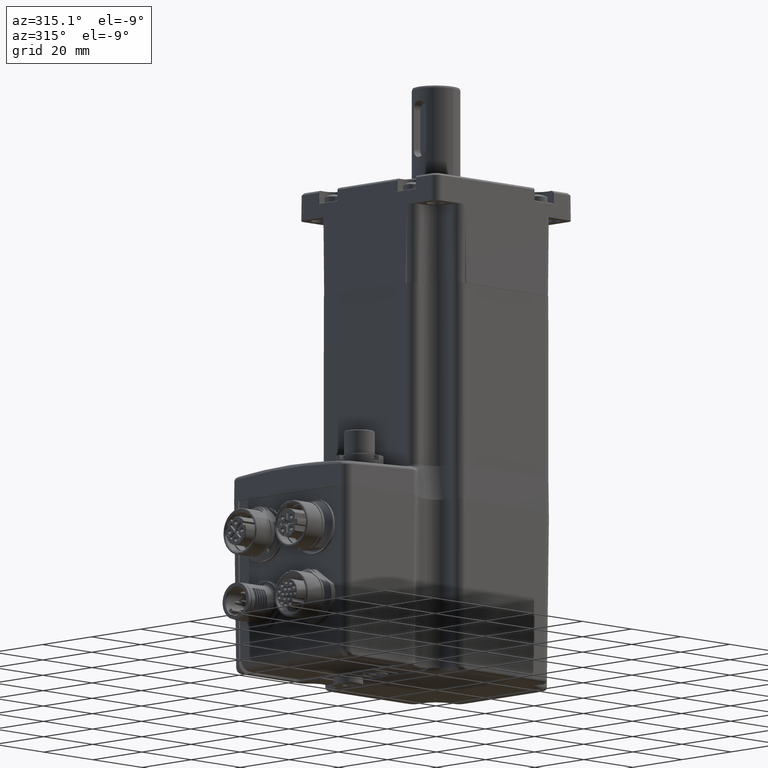
[diagram: clean part render]
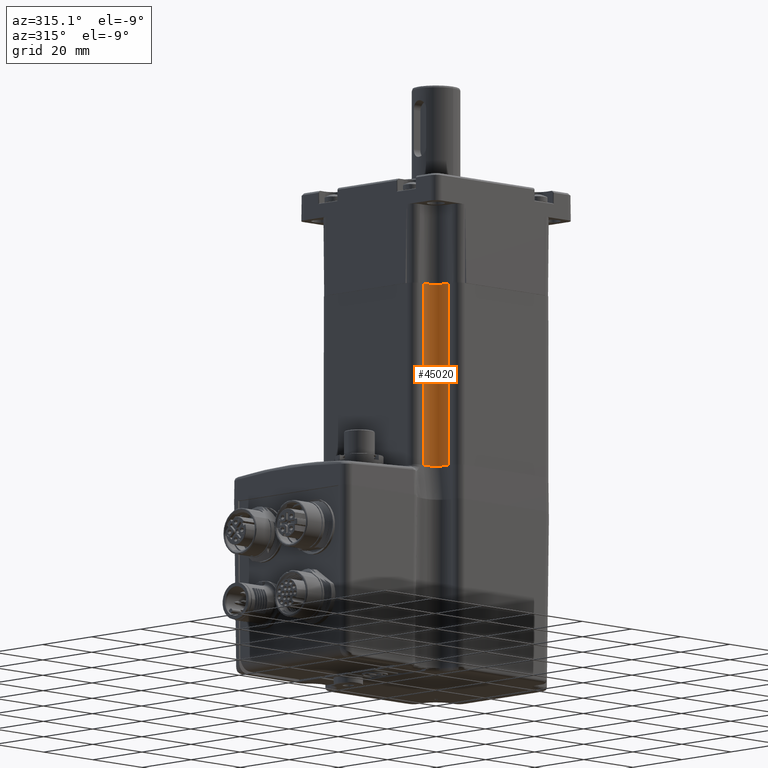
[diagram: same view with one face highlighted and labeled with its STEP entity id]
A machine part, auxiliary view. The second image highlights one B-rep face of the part: STEP entity #45020.
In plain terms, the highlighted cylindrical surface (edge-blend (fillet) strip) has radius 5 mm, axis along (-0, -0, -1).
Its self-contained STEP definition (entity closure, byte-faithful):
#1067 = CARTESIAN_POINT ( 'NONE',  ( -19.13013661665843657, -22.69126057820360387, -43.00000000000002842 ) ) ;
#4539 = ORIENTED_EDGE ( 'NONE', *, *, #46717, .F. ) ;
#8605 = ORIENTED_EDGE ( 'NONE', *, *, #33472, .F. ) ;
#9558 = B_SPLINE_CURVE_WITH_KNOTS ( 'NONE', 3,
 ( #73161, #111481, #58104, #39300, #86936, #48728, #115137, #1067, #11682, #59332 ),
 .UNSPECIFIED., .F., .F.,
 ( 4, 2, 2, 2, 4 ),
 ( 0.000000000000000000, 0.2500000000000000000, 0.5000000000000000000, 0.7500000000000000000, 1.000000000000000000 ),
 .UNSPECIFIED. ) ;
#11682 = CARTESIAN_POINT ( 'NONE',  ( -19.00000000000001776, -23.34550153050212629, -43.00000000000002132 ) ) ;
#18650 = CARTESIAN_POINT ( 'NONE',  ( -18.99964102040603819, -24.00000000000000000, 9.999999999999971578 ) ) ;
#19528 = CARTESIAN_POINT ( 'NONE',  ( -24.00000000000000711, -24.00000000000000000, 9.999999999999973355 ) ) ;
#19568 = VERTEX_POINT ( 'NONE', #102492 ) ;
#19661 = LINE ( 'NONE', #39699, #120778 ) ;
#20147 = FACE_OUTER_BOUND ( 'NONE', #77232, .T. ) ;
#21146 = EDGE_CURVE ( 'NONE', #19568, #72557, #19661, .T. ) ;
#22226 = CARTESIAN_POINT ( 'NONE',  ( -23.79920190844596206, -19.00190596703989598, 9.999999999999971578 ) ) ;
#22910 = B_SPLINE_CURVE_WITH_KNOTS ( 'NONE', 3,
 ( #79186, #108733, #41611, #22226 ),
 .UNSPECIFIED., .F., .F.,
 ( 4, 4 ),
 ( 0.8896583735169266705, 1.000000000000000000 ),
 .UNSPECIFIED. ) ;
#25415 = VECTOR ( 'NONE', #29261, 1000.000000000000000 ) ;
#27124 = DIRECTION ( 'NONE',  ( -1.000000000000000000, 0.000000000000000000, 0.000000000000000000 ) ) ;
#27643 = DIRECTION ( 'NONE',  ( -0.000000000000000000, -0.000000000000000000, -1.000000000000000000 ) ) ;
#29242 = VERTEX_POINT ( 'NONE', #62898 ) ;
#29261 = DIRECTION ( 'NONE',  ( -0.000000000000000000, -0.000000000000000000, -1.000000000000000000 ) ) ;
#33472 = EDGE_CURVE ( 'NONE', #94323, #111662, #76344, .T. ) ;
#35187 = EDGE_CURVE ( 'NONE', #111662, #93773, #105124, .T. ) ;
#38333 = CYLINDRICAL_SURFACE ( 'NONE', #110665, 4.999999999999993783 ) ;
#39066 = DIRECTION ( 'NONE',  ( -0.000000000000000000, -0.000000000000000000, -1.000000000000000000 ) ) ;
#39300 = CARTESIAN_POINT ( 'NONE',  ( -21.48190509814551064, -19.63106805822870982, -43.00000000000001421 ) ) ;
#39423 = AXIS2_PLACEMENT_3D ( 'NONE', #102892, #27643, #85196 ) ;
#39699 = CARTESIAN_POINT ( 'NONE',  ( -24.00000000000000711, -19.00000000000001066, 9.999999999999973355 ) ) ;
#41595 = CARTESIAN_POINT ( 'NONE',  ( -19.00190585406195254, -23.79920476146977748, 9.999999999999971578 ) ) ;
#41611 = CARTESIAN_POINT ( 'NONE',  ( -23.86606618101340871, -18.99928204081344418, 9.999999999999968026 ) ) ;
#45020 = ADVANCED_FACE ( 'NONE', ( #20147 ), #38333, .F. ) ;
#46717 = EDGE_CURVE ( 'NONE', #29242, #94323, #93501, .T. ) ;
#48626 = ORIENTED_EDGE ( 'NONE', *, *, #35187, .F. ) ;
#48728 = CARTESIAN_POINT ( 'NONE',  ( -20.00166578800911310, -20.92726640012543271, -43.00000000000001421 ) ) ;
#56240 = EDGE_CURVE ( 'NONE', #72557, #93773, #9558, .T. ) ;
#56643 = EDGE_CURVE ( 'NONE', #19568, #29242, #22910, .T. ) ;
#58104 = CARTESIAN_POINT ( 'NONE',  ( -22.69126057820360742, -19.13013661665842946, -43.00000000000002842 ) ) ;
#58968 = CARTESIAN_POINT ( 'NONE',  ( -19.00009088569424520, -24.00000074003705564, -43.00000083336040291 ) ) ;
#59332 = CARTESIAN_POINT ( 'NONE',  ( -19.00009088569424520, -24.00000074003705564, -43.00000083336040291 ) ) ;
#62152 = CARTESIAN_POINT ( 'NONE',  ( -19.00190585406195254, -23.79920476146977748, 9.999999999999971578 ) ) ;
#62898 = CARTESIAN_POINT ( 'NONE',  ( -23.79920190844596206, -19.00190596703989598, 9.999999999999971578 ) ) ;
#69814 = CARTESIAN_POINT ( 'NONE',  ( -18.99928204081207284, -23.93303309050714844, 9.999999999999964473 ) ) ;
#72557 = VERTEX_POINT ( 'NONE', #122815 ) ;
#73161 = CARTESIAN_POINT ( 'NONE',  ( -23.99705883283406749, -19.00000000000000711, -43.00000000000002132 ) ) ;
#76344 = B_SPLINE_CURVE_WITH_KNOTS ( 'NONE', 3,
 ( #41595, #115583, #69814, #79797 ),
 .UNSPECIFIED., .F., .F.,
 ( 4, 4 ),
 ( 0.000000000000000000, 0.1103416264823340320 ),
 .UNSPECIFIED. ) ;
#76528 = DIRECTION ( 'NONE',  ( -0.000000000000000000, -0.000000000000000000, -1.000000000000000000 ) ) ;
#77232 = EDGE_LOOP ( 'NONE', ( #115379, #48626, #8605, #4539, #82197, #96713 ) ) ;
#79186 = CARTESIAN_POINT ( 'NONE',  ( -24.00000000000000711, -18.99964102040673097, 9.999999999999971578 ) ) ;
#79797 = CARTESIAN_POINT ( 'NONE',  ( -18.99964102040603819, -24.00000000000000000, 9.999999999999971578 ) ) ;
#82197 = ORIENTED_EDGE ( 'NONE', *, *, #56643, .F. ) ;
#85196 = DIRECTION ( 'NONE',  ( -1.000000000000000000, 0.000000000000000000, 0.000000000000000000 ) ) ;
#86936 = CARTESIAN_POINT ( 'NONE',  ( -20.92726640012543626, -20.00166578800910244, -43.00000000000002132 ) ) ;
#93501 = CIRCLE ( 'NONE', #39423, 4.999999999999993783 ) ;
#93773 = VERTEX_POINT ( 'NONE', #58968 ) ;
#94323 = VERTEX_POINT ( 'NONE', #62152 ) ;
#96713 = ORIENTED_EDGE ( 'NONE', *, *, #21146, .T. ) ;
#102492 = CARTESIAN_POINT ( 'NONE',  ( -24.00000000000000711, -18.99964102040673097, 9.999999999999971578 ) ) ;
#102892 = CARTESIAN_POINT ( 'NONE',  ( -24.00000000000000711, -24.00000000000000000, 9.999999999999973355 ) ) ;
#105124 = LINE ( 'NONE', #123829, #25415 ) ;
#108733 = CARTESIAN_POINT ( 'NONE',  ( -23.93303309050670791, -18.99928204081344418, 9.999999999999968026 ) ) ;
#110665 = AXIS2_PLACEMENT_3D ( 'NONE', #19528, #76528, #27124 ) ;
#111481 = CARTESIAN_POINT ( 'NONE',  ( -23.34550153050212629, -19.00000000000000355, -43.00000000000002132 ) ) ;
#111662 = VERTEX_POINT ( 'NONE', #18650 ) ;
#115137 = CARTESIAN_POINT ( 'NONE',  ( -19.63106805822872403, -21.48190509814550708, -43.00000000000002132 ) ) ;
#115379 = ORIENTED_EDGE ( 'NONE', *, *, #56240, .T. ) ;
#115583 = CARTESIAN_POINT ( 'NONE',  ( -18.99928204081207284, -23.86606618101430044, 9.999999999999968026 ) ) ;
#120778 = VECTOR ( 'NONE', #39066, 1000.000000000000000 ) ;
#122815 = CARTESIAN_POINT ( 'NONE',  ( -23.99705883283406749, -19.00000000000000711, -43.00000000000002132 ) ) ;
#123829 = CARTESIAN_POINT ( 'NONE',  ( -19.00000000000001066, -24.00000000000000000, 9.999999999999973355 ) ) ;